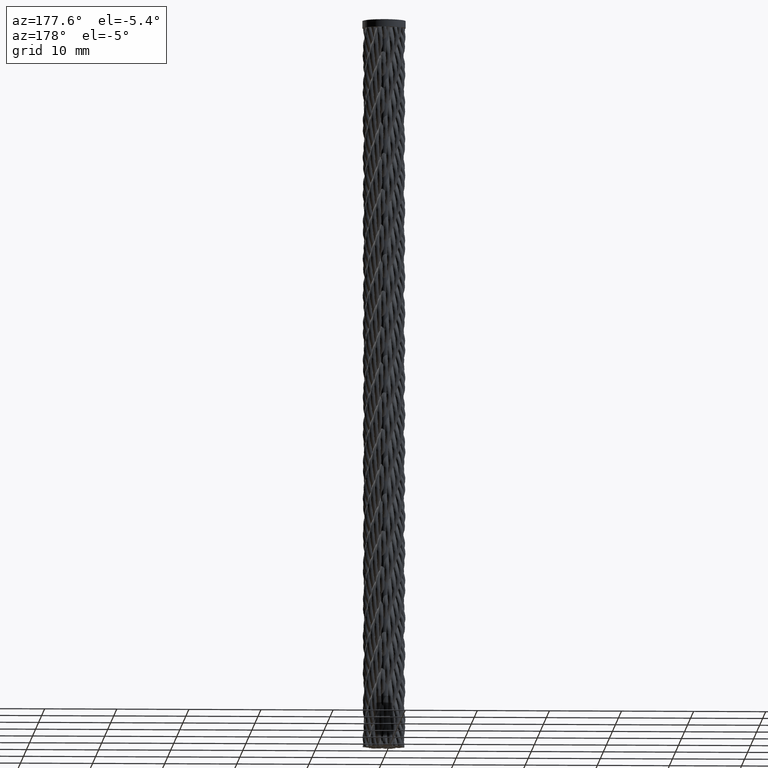
[diagram: clean part render]
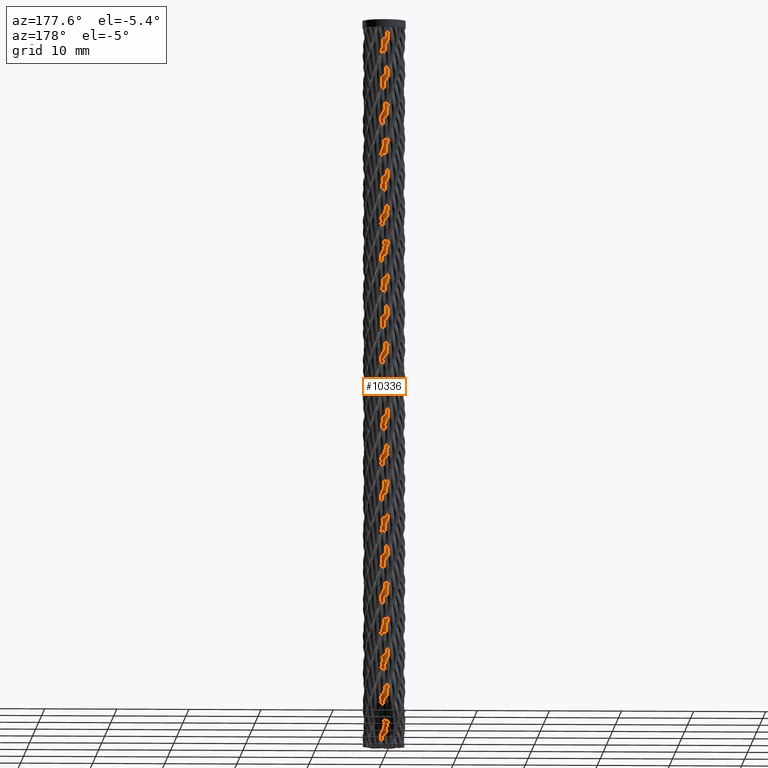
[diagram: same view with one face highlighted and labeled with its STEP entity id]
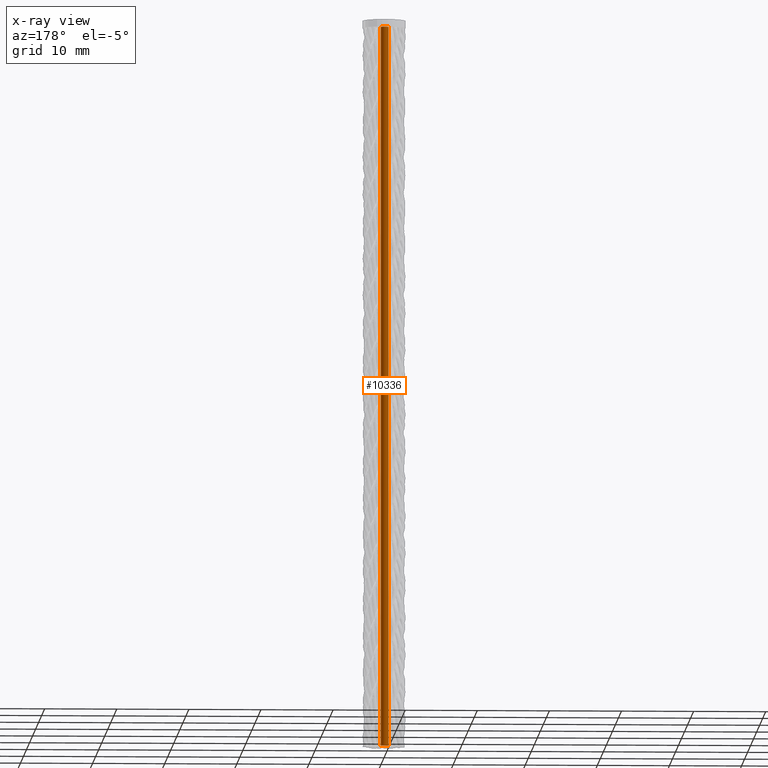
[diagram: x-ray of the same camera — body ghosted, the highlighted face saturated]
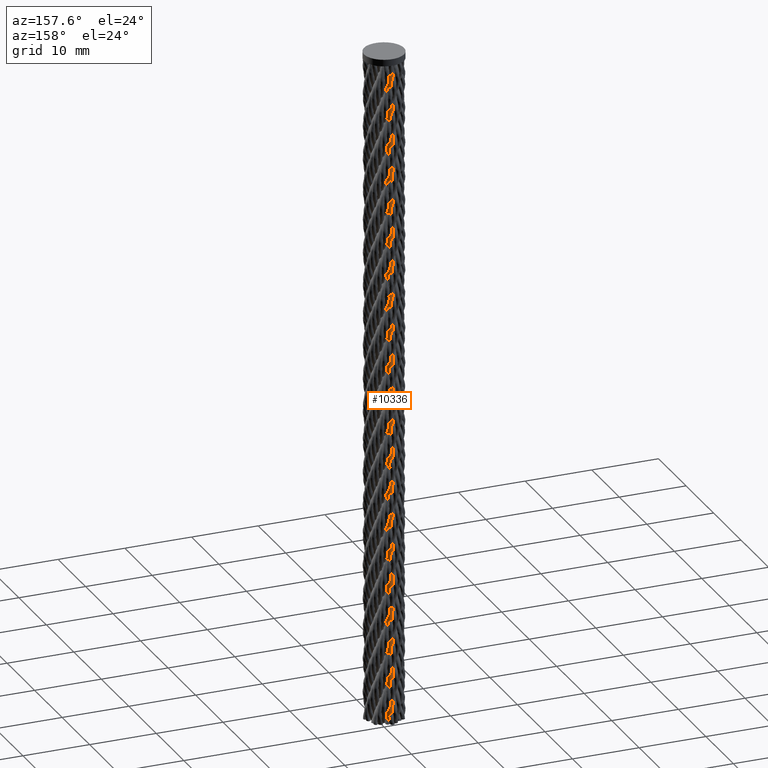
[diagram: same view with one face highlighted and labeled with its STEP entity id]
A machine part, auxiliary view. The second image highlights one B-rep face of the part: STEP entity #10336.
The next image is the same camera in x-ray: the body ghosted, the highlighted face saturated — about 0% of this face is hidden behind the body in this view.
A second angle (auxiliary view) of the same face is appended — the face is thin or edge-on in the first view.
In plain terms, the highlighted cylindrical surface (bore or boss wall) has radius 0.55 mm, axis along (0, 0, -1).
Its self-contained STEP definition (entity closure, byte-faithful):
#1804 = DIRECTION ( 'NONE',  ( -1.000000000000000000, 0.000000000000000000, 0.000000000000000000 ) ) ;
#5149 = DIRECTION ( 'NONE',  ( 0.000000000000000000, 0.000000000000000000, -1.000000000000000000 ) ) ;
#8488 = DIRECTION ( 'NONE',  ( 0.000000000000000000, 0.000000000000000000, -1.000000000000000000 ) ) ;
#10336 = ADVANCED_FACE ( 'NONE', ( #27593, #50289 ), #28848, .T. ) ;
#14040 = CARTESIAN_POINT ( 'NONE',  ( -0.5500000000000000444, 2.000000000000000000, -100.0000000000000000 ) ) ;
#16228 = EDGE_LOOP ( 'NONE', ( #23476 ) ) ;
#17965 = EDGE_LOOP ( 'NONE', ( #38235 ) ) ;
#18811 = CIRCLE ( 'NONE', #22485, 0.5500000000000000444 ) ;
#22485 = AXIS2_PLACEMENT_3D ( 'NONE', #41648, #25269, #26312 ) ;
#22602 = CIRCLE ( 'NONE', #28879, 0.5500000000000000444 ) ;
#23476 = ORIENTED_EDGE ( 'NONE', *, *, #49721, .T. ) ;
#24319 = DIRECTION ( 'NONE',  ( -1.000000000000000000, 0.000000000000000000, 0.000000000000000000 ) ) ;
#25269 = DIRECTION ( 'NONE',  ( 0.000000000000000000, 0.000000000000000000, -1.000000000000000000 ) ) ;
#26312 = DIRECTION ( 'NONE',  ( -1.000000000000000000, 0.000000000000000000, 0.000000000000000000 ) ) ;
#27593 = FACE_OUTER_BOUND ( 'NONE', #17965, .T. ) ;
#28848 = CYLINDRICAL_SURFACE ( 'NONE', #44238, 0.5500000000000000444 ) ;
#28879 = AXIS2_PLACEMENT_3D ( 'NONE', #41749, #5149, #1804 ) ;
#30069 = CARTESIAN_POINT ( 'NONE',  ( -0.5500000000000000444, 2.000000000000000000, 0.000000000000000000 ) ) ;
#32658 = VERTEX_POINT ( 'NONE', #30069 ) ;
#36464 = CARTESIAN_POINT ( 'NONE',  ( 0.000000000000000000, 2.000000000000000000, 0.000000000000000000 ) ) ;
#38235 = ORIENTED_EDGE ( 'NONE', *, *, #47699, .F. ) ;
#41648 = CARTESIAN_POINT ( 'NONE',  ( 0.000000000000000000, 2.000000000000000000, 0.000000000000000000 ) ) ;
#41749 = CARTESIAN_POINT ( 'NONE',  ( 0.000000000000000000, 2.000000000000000000, -100.0000000000000000 ) ) ;
#44238 = AXIS2_PLACEMENT_3D ( 'NONE', #36464, #8488, #24319 ) ;
#47699 = EDGE_CURVE ( 'NONE', #47759, #47759, #22602, .T. ) ;
#47759 = VERTEX_POINT ( 'NONE', #14040 ) ;
#49721 = EDGE_CURVE ( 'NONE', #32658, #32658, #18811, .T. ) ;
#50289 = FACE_OUTER_BOUND ( 'NONE', #16228, .T. ) ;